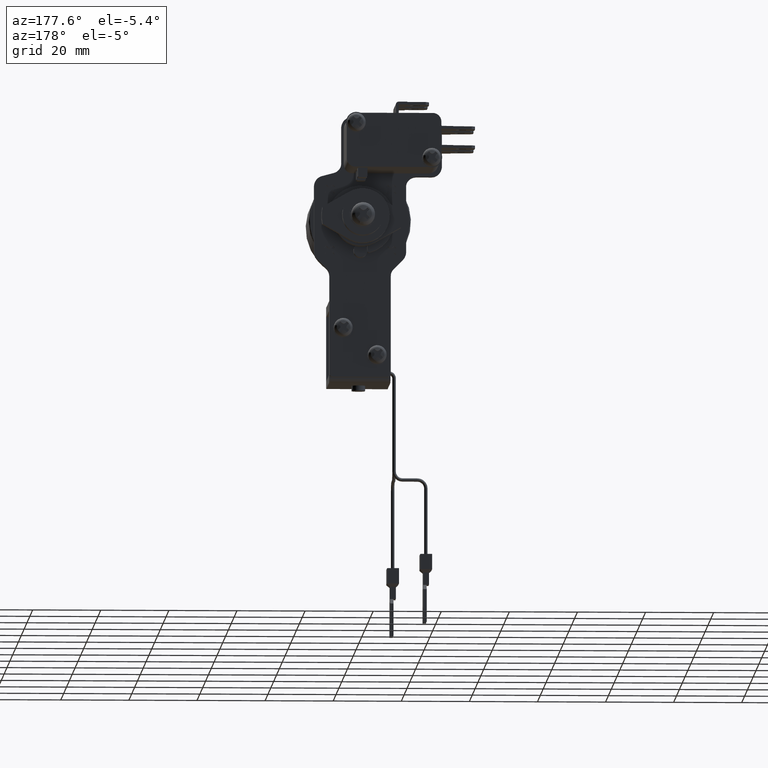
[diagram: clean part render]
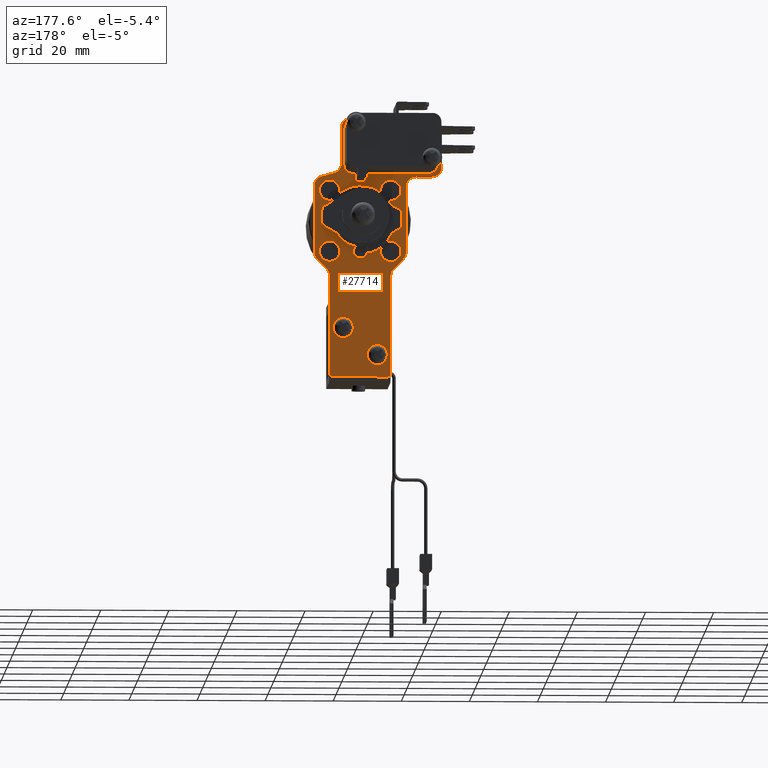
[diagram: same view with one face highlighted and labeled with its STEP entity id]
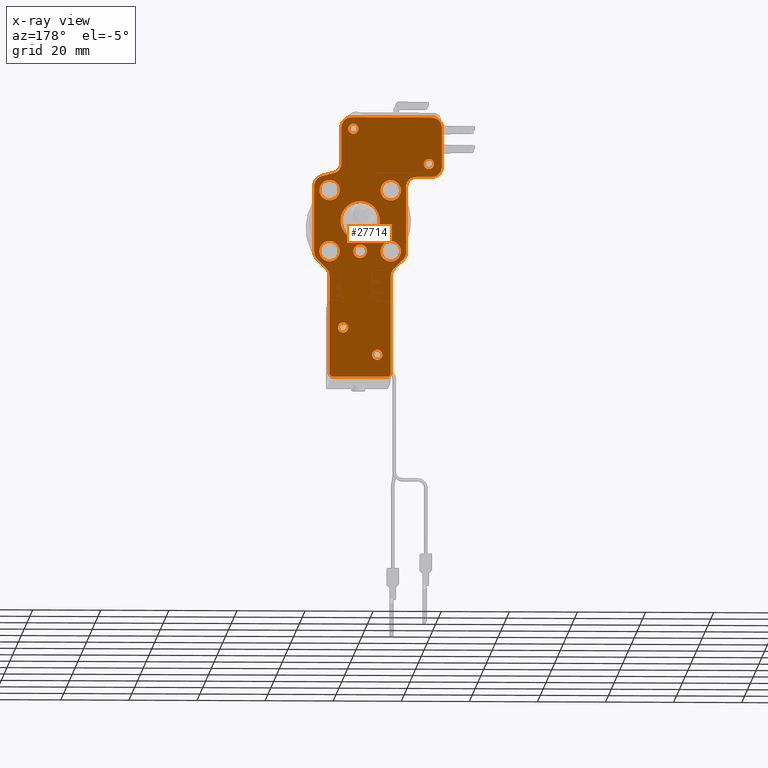
[diagram: x-ray of the same camera — body ghosted, the highlighted face saturated]
A machine part, auxiliary view. The second image highlights one B-rep face of the part: STEP entity #27714.
The next image is the same camera in x-ray: the body ghosted, the highlighted face saturated — about 0% of this face is hidden behind the body in this view.
In plain terms, the highlighted face is a freeform B-spline surface patch.
Its self-contained STEP definition (entity closure, byte-faithful):
#24863=CARTESIAN_POINT('',(29.0,-1.999923846119883,-8.982546928040161));
#24864=VERTEX_POINT('',#24863);
#24870=CARTESIAN_POINT('',(29.0,0.0,-10.999999999999940));
#24871=VERTEX_POINT('',#24870);
#24872=CARTESIAN_POINT('',(29.0,-1.999923846119883,-8.982546928040161));
#24873=CARTESIAN_POINT('',(28.999999999999996,-1.999999999999945,-8.991273297395450));
#24874=CARTESIAN_POINT('',(29.0,-1.999999999999945,-9.0));
#24875=CARTESIAN_POINT('',(29.0,-1.999999999999945,-10.999999999999943));
#24876=CARTESIAN_POINT('',(29.0,0.0,-10.999999999999940));
#24884=(BOUNDED_CURVE()B_SPLINE_CURVE(2,(#24872,#24873,#24874,#24875,#24876),.UNSPECIFIED.,.F.,.U.)B_SPLINE_CURVE_WITH_KNOTS((3,2,3),(0.248460105495365,0.250000000000000,0.500000000000000),.UNSPECIFIED.)CURVE()GEOMETRIC_REPRESENTATION_ITEM()RATIONAL_B_SPLINE_CURVE((0.996414027707793,0.998195901367617,1.0,0.707106781186548,1.0))REPRESENTATION_ITEM(''));
#24885=EDGE_CURVE('',#24864,#24871,#24884,.T.);
#24887=CARTESIAN_POINT('',(29.0,1.984532427645714,-9.248256004202085));
#24888=VERTEX_POINT('',#24887);
#24889=CARTESIAN_POINT('',(29.0,0.0,-10.999999999999940));
#24890=CARTESIAN_POINT('',(28.999999999999993,1.765397200224316,-10.999999999999943));
#24891=CARTESIAN_POINT('',(29.0,1.984532427645715,-9.248256004202085));
#24899=(BOUNDED_CURVE()B_SPLINE_CURVE(2,(#24889,#24890,#24891),.UNSPECIFIED.,.F.,.U.)B_SPLINE_CURVE_WITH_KNOTS((3,3),(0.500000000000000,0.728526071022086),.UNSPECIFIED.)CURVE()GEOMETRIC_REPRESENTATION_ITEM()RATIONAL_B_SPLINE_CURVE((1.0,0.732265053902198,0.954005430260721))REPRESENTATION_ITEM(''));
#24900=EDGE_CURVE('',#24871,#24888,#24899,.T.);
#24950=CARTESIAN_POINT('',(29.0,0.0,-7.000000000000055));
#24951=VERTEX_POINT('',#24950);
#24952=CARTESIAN_POINT('',(28.999999999999996,1.984532427645714,-9.248256004202085));
#24953=CARTESIAN_POINT('',(29.0,1.999999999999945,-9.124609855109915));
#24954=CARTESIAN_POINT('',(29.0,1.999999999999945,-9.0));
#24955=CARTESIAN_POINT('',(29.0,1.999999999999945,-7.000000000000055));
#24956=CARTESIAN_POINT('',(29.0,0.0,-7.000000000000055));
#24964=(BOUNDED_CURVE()B_SPLINE_CURVE(2,(#24952,#24953,#24954,#24955,#24956),.UNSPECIFIED.,.F.,.U.)B_SPLINE_CURVE_WITH_KNOTS((3,2,3),(0.728526071022087,0.750000000000000,1.0),.UNSPECIFIED.)CURVE()GEOMETRIC_REPRESENTATION_ITEM()RATIONAL_B_SPLINE_CURVE((0.954005430260723,0.974841727284350,1.0,0.707106781186548,1.0))REPRESENTATION_ITEM(''));
#24965=EDGE_CURVE('',#24888,#24951,#24964,.T.);
#24967=CARTESIAN_POINT('',(29.0,0.0,-7.000000000000055));
#24968=CARTESIAN_POINT('',(28.999999999999996,-1.982622419280312,-7.000000000000053));
#24969=CARTESIAN_POINT('',(29.000000000000004,-1.999923846119883,-8.982546928040161));
#24977=(BOUNDED_CURVE()B_SPLINE_CURVE(2,(#24967,#24968,#24969),.UNSPECIFIED.,.F.,.U.)B_SPLINE_CURVE_WITH_KNOTS((3,3),(0.0,0.248460105495365),.UNSPECIFIED.)CURVE()GEOMETRIC_REPRESENTATION_ITEM()RATIONAL_B_SPLINE_CURVE((1.0,0.708910879818930,0.996414027707793))REPRESENTATION_ITEM(''));
#24978=EDGE_CURVE('',#24951,#24864,#24977,.T.);
#25015=CARTESIAN_POINT('',(29.0,4.999999999999770,-38.0));
#25016=VERTEX_POINT('',#25015);
#25017=CARTESIAN_POINT('',(29.0,3.504623999442665,-39.382311355867117));
#25018=VERTEX_POINT('',#25017);
#25019=CARTESIAN_POINT('',(29.0,4.999999999999770,-38.0));
#25020=CARTESIAN_POINT('',(29.000000000000007,3.613414263519043,-38.000000000000007));
#25021=CARTESIAN_POINT('',(29.000000000000004,3.504623999442665,-39.382311355867124));
#25029=(BOUNDED_CURVE()B_SPLINE_CURVE(2,(#25019,#25020,#25021),.UNSPECIFIED.,.F.,.U.)B_SPLINE_CURVE_WITH_KNOTS((3,3),(0.0,0.236331300508706),.UNSPECIFIED.)CURVE()GEOMETRIC_REPRESENTATION_ITEM()RATIONAL_B_SPLINE_CURVE((1.0,0.723120658750543,0.969723355912909))REPRESENTATION_ITEM(''));
#25030=EDGE_CURVE('',#25016,#25018,#25029,.T.);
#25071=CARTESIAN_POINT('',(29.0,6.495376000556876,-39.617688644132883));
#25072=VERTEX_POINT('',#25071);
#25078=CARTESIAN_POINT('',(29.0,6.495376000556876,-39.617688644132876));
#25079=CARTESIAN_POINT('',(29.0,6.499999999999770,-39.558935161055118));
#25080=CARTESIAN_POINT('',(29.0,6.499999999999770,-39.500000000000000));
#25081=CARTESIAN_POINT('',(29.0,6.499999999999771,-38.0));
#25082=CARTESIAN_POINT('',(29.0,4.999999999999770,-38.0));
#25090=(BOUNDED_CURVE()B_SPLINE_CURVE(2,(#25078,#25079,#25080,#25081,#25082),.UNSPECIFIED.,.F.,.U.)B_SPLINE_CURVE_WITH_KNOTS((3,2,3),(0.736331300508706,0.750000000000000,1.0),.UNSPECIFIED.)CURVE()GEOMETRIC_REPRESENTATION_ITEM()RATIONAL_B_SPLINE_CURVE((0.969723355912910,0.983986122436004,1.0,0.707106781186548,1.0))REPRESENTATION_ITEM(''));
#25091=EDGE_CURVE('',#25072,#25016,#25090,.T.);
#25114=CARTESIAN_POINT('',(29.0,4.999999999999770,-41.0));
#25115=VERTEX_POINT('',#25114);
#25116=CARTESIAN_POINT('',(29.000000000000004,3.504623999442665,-39.382311355867124));
#25117=CARTESIAN_POINT('',(28.999999999999996,3.499999999999770,-39.441064838944882));
#25118=CARTESIAN_POINT('',(29.0,3.499999999999770,-39.500000000000000));
#25119=CARTESIAN_POINT('',(29.0,3.499999999999770,-41.0));
#25120=CARTESIAN_POINT('',(29.0,4.999999999999770,-41.0));
#25128=(BOUNDED_CURVE()B_SPLINE_CURVE(2,(#25116,#25117,#25118,#25119,#25120),.UNSPECIFIED.,.F.,.U.)B_SPLINE_CURVE_WITH_KNOTS((3,2,3),(0.236331300508706,0.250000000000000,0.500000000000000),.UNSPECIFIED.)CURVE()GEOMETRIC_REPRESENTATION_ITEM()RATIONAL_B_SPLINE_CURVE((0.969723355912909,0.983986122436004,1.0,0.707106781186548,1.0))REPRESENTATION_ITEM(''));
#25129=EDGE_CURVE('',#25018,#25115,#25128,.T.);
#25131=CARTESIAN_POINT('',(29.0,4.999999999999770,-41.0));
#25132=CARTESIAN_POINT('',(29.000000000000004,6.386585736480493,-40.999999999999993));
#25133=CARTESIAN_POINT('',(28.999999999999996,6.495376000556876,-39.617688644132876));
#25141=(BOUNDED_CURVE()B_SPLINE_CURVE(2,(#25131,#25132,#25133),.UNSPECIFIED.,.F.,.U.)B_SPLINE_CURVE_WITH_KNOTS((3,3),(0.500000000000000,0.736331300508705),.UNSPECIFIED.)CURVE()GEOMETRIC_REPRESENTATION_ITEM()RATIONAL_B_SPLINE_CURVE((1.0,0.723120658750544,0.969723355912908))REPRESENTATION_ITEM(''));
#25142=EDGE_CURVE('',#25115,#25072,#25141,.T.);
#25197=CARTESIAN_POINT('',(29.0,-5.0,-30.0));
#25198=VERTEX_POINT('',#25197);
#25199=CARTESIAN_POINT('',(29.0,-6.495376000557107,-31.382311355867120));
#25200=VERTEX_POINT('',#25199);
#25201=CARTESIAN_POINT('',(29.0,-5.0,-30.0));
#25202=CARTESIAN_POINT('',(29.000000000000007,-6.386585736480729,-30.0));
#25203=CARTESIAN_POINT('',(29.000000000000004,-6.495376000557107,-31.382311355867127));
#25211=(BOUNDED_CURVE()B_SPLINE_CURVE(2,(#25201,#25202,#25203),.UNSPECIFIED.,.F.,.U.)B_SPLINE_CURVE_WITH_KNOTS((3,3),(0.0,0.236331300508706),.UNSPECIFIED.)CURVE()GEOMETRIC_REPRESENTATION_ITEM()RATIONAL_B_SPLINE_CURVE((1.0,0.723120658750543,0.969723355912909))REPRESENTATION_ITEM(''));
#25212=EDGE_CURVE('',#25198,#25200,#25211,.T.);
#25253=CARTESIAN_POINT('',(29.0,-3.504623999442894,-31.617688644132880));
#25254=VERTEX_POINT('',#25253);
#25260=CARTESIAN_POINT('',(29.000000000000004,-3.504623999442894,-31.617688644132876));
#25261=CARTESIAN_POINT('',(29.0,-3.500000000000000,-31.558935161055118));
#25262=CARTESIAN_POINT('',(29.0,-3.500000000000000,-31.500000000000000));
#25263=CARTESIAN_POINT('',(29.0,-3.499999999999999,-30.000000000000004));
#25264=CARTESIAN_POINT('',(29.0,-5.0,-30.0));
#25272=(BOUNDED_CURVE()B_SPLINE_CURVE(2,(#25260,#25261,#25262,#25263,#25264),.UNSPECIFIED.,.F.,.U.)B_SPLINE_CURVE_WITH_KNOTS((3,2,3),(0.736331300508706,0.750000000000000,1.0),.UNSPECIFIED.)CURVE()GEOMETRIC_REPRESENTATION_ITEM()RATIONAL_B_SPLINE_CURVE((0.969723355912909,0.983986122436004,1.0,0.707106781186548,1.0))REPRESENTATION_ITEM(''));
#25273=EDGE_CURVE('',#25254,#25198,#25272,.T.);
#25296=CARTESIAN_POINT('',(29.0,-5.0,-33.0));
#25297=VERTEX_POINT('',#25296);
#25298=CARTESIAN_POINT('',(29.000000000000004,-6.495376000557107,-31.382311355867127));
#25299=CARTESIAN_POINT('',(28.999999999999996,-6.500000000000002,-31.441064838944875));
#25300=CARTESIAN_POINT('',(29.0,-6.500000000000001,-31.500000000000000));
#25301=CARTESIAN_POINT('',(29.0,-6.500000000000003,-33.0));
#25302=CARTESIAN_POINT('',(29.0,-5.0,-33.0));
#25310=(BOUNDED_CURVE()B_SPLINE_CURVE(2,(#25298,#25299,#25300,#25301,#25302),.UNSPECIFIED.,.F.,.U.)B_SPLINE_CURVE_WITH_KNOTS((3,2,3),(0.236331300508706,0.250000000000000,0.500000000000000),.UNSPECIFIED.)CURVE()GEOMETRIC_REPRESENTATION_ITEM()RATIONAL_B_SPLINE_CURVE((0.969723355912909,0.983986122436004,1.0,0.707106781186548,1.0))REPRESENTATION_ITEM(''));
#25311=EDGE_CURVE('',#25200,#25297,#25310,.T.);
#25313=CARTESIAN_POINT('',(29.0,-5.0,-33.0));
#25314=CARTESIAN_POINT('',(29.000000000000004,-3.613414263519278,-33.0));
#25315=CARTESIAN_POINT('',(28.999999999999996,-3.504623999442894,-31.617688644132880));
#25323=(BOUNDED_CURVE()B_SPLINE_CURVE(2,(#25313,#25314,#25315),.UNSPECIFIED.,.F.,.U.)B_SPLINE_CURVE_WITH_KNOTS((3,3),(0.500000000000000,0.736331300508705),.UNSPECIFIED.)CURVE()GEOMETRIC_REPRESENTATION_ITEM()RATIONAL_B_SPLINE_CURVE((1.0,0.723120658750544,0.969723355912908))REPRESENTATION_ITEM(''));
#25324=EDGE_CURVE('',#25297,#25254,#25323,.T.);
#25379=CARTESIAN_POINT('',(29.0,-2.0,28.600000000000001));
#25380=VERTEX_POINT('',#25379);
#25381=CARTESIAN_POINT('',(29.0,-3.495376000557106,27.217688644132870));
#25382=VERTEX_POINT('',#25381);
#25383=CARTESIAN_POINT('',(29.0,-2.0,28.600000000000001));
#25384=CARTESIAN_POINT('',(29.000000000000004,-3.386585736480730,28.600000000000001));
#25385=CARTESIAN_POINT('',(29.0,-3.495376000557106,27.217688644132874));
#25393=(BOUNDED_CURVE()B_SPLINE_CURVE(2,(#25383,#25384,#25385),.UNSPECIFIED.,.F.,.U.)B_SPLINE_CURVE_WITH_KNOTS((3,3),(0.0,0.236331300508706),.UNSPECIFIED.)CURVE()GEOMETRIC_REPRESENTATION_ITEM()RATIONAL_B_SPLINE_CURVE((1.0,0.723120658750543,0.969723355912911))REPRESENTATION_ITEM(''));
#25394=EDGE_CURVE('',#25380,#25382,#25393,.T.);
#25435=CARTESIAN_POINT('',(29.000000000000011,-0.504623999442894,26.982311355867129));
#25436=VERTEX_POINT('',#25435);
#25442=CARTESIAN_POINT('',(29.000000000000004,-0.504623999442894,26.982311355867129));
#25443=CARTESIAN_POINT('',(29.0,-0.500000000000000,27.041064838944877));
#25444=CARTESIAN_POINT('',(29.0,-0.500000000000000,27.100000000000001));
#25445=CARTESIAN_POINT('',(29.0,-0.500000000000000,28.600000000000012));
#25446=CARTESIAN_POINT('',(29.0,-2.0,28.600000000000001));
#25454=(BOUNDED_CURVE()B_SPLINE_CURVE(2,(#25442,#25443,#25444,#25445,#25446),.UNSPECIFIED.,.F.,.U.)B_SPLINE_CURVE_WITH_KNOTS((3,2,3),(0.736331300508706,0.750000000000000,1.0),.UNSPECIFIED.)CURVE()GEOMETRIC_REPRESENTATION_ITEM()RATIONAL_B_SPLINE_CURVE((0.969723355912911,0.983986122436005,1.0,0.707106781186548,1.0))REPRESENTATION_ITEM(''));
#25455=EDGE_CURVE('',#25436,#25380,#25454,.T.);
#25478=CARTESIAN_POINT('',(29.0,-2.0,25.600000000000001));
#25479=VERTEX_POINT('',#25478);
#25480=CARTESIAN_POINT('',(29.000000000000004,-3.495376000557105,27.217688644132867));
#25481=CARTESIAN_POINT('',(29.0,-3.500000000000000,27.158935161055119));
#25482=CARTESIAN_POINT('',(29.0,-3.500000000000000,27.100000000000001));
#25483=CARTESIAN_POINT('',(29.0,-3.499999999999999,25.600000000000001));
#25484=CARTESIAN_POINT('',(29.0,-2.0,25.600000000000001));
#25492=(BOUNDED_CURVE()B_SPLINE_CURVE(2,(#25480,#25481,#25482,#25483,#25484),.UNSPECIFIED.,.F.,.U.)B_SPLINE_CURVE_WITH_KNOTS((3,2,3),(0.236331300508706,0.250000000000000,0.500000000000000),.UNSPECIFIED.)CURVE()GEOMETRIC_REPRESENTATION_ITEM()RATIONAL_B_SPLINE_CURVE((0.969723355912911,0.983986122436005,1.0,0.707106781186548,1.0))REPRESENTATION_ITEM(''));
#25493=EDGE_CURVE('',#25382,#25479,#25492,.T.);
#25495=CARTESIAN_POINT('',(29.0,-2.0,25.600000000000001));
#25496=CARTESIAN_POINT('',(29.000000000000004,-0.613414263519278,25.600000000000005));
#25497=CARTESIAN_POINT('',(29.000000000000007,-0.504623999442894,26.982311355867129));
#25505=(BOUNDED_CURVE()B_SPLINE_CURVE(2,(#25495,#25496,#25497),.UNSPECIFIED.,.F.,.U.)B_SPLINE_CURVE_WITH_KNOTS((3,3),(0.500000000000000,0.736331300508705),.UNSPECIFIED.)CURVE()GEOMETRIC_REPRESENTATION_ITEM()RATIONAL_B_SPLINE_CURVE((1.0,0.723120658750544,0.969723355912908))REPRESENTATION_ITEM(''));
#25506=EDGE_CURVE('',#25479,#25436,#25505,.T.);
#25561=CARTESIAN_POINT('',(29.0,20.199999999999999,18.300000000000001));
#25562=VERTEX_POINT('',#25561);
#25563=CARTESIAN_POINT('',(29.0,18.704623999442891,16.917688644132870));
#25564=VERTEX_POINT('',#25563);
#25565=CARTESIAN_POINT('',(29.0,20.199999999999999,18.300000000000001));
#25566=CARTESIAN_POINT('',(28.999999999999993,18.813414263519267,18.299999999999997));
#25567=CARTESIAN_POINT('',(29.0,18.704623999442894,16.917688644132870));
#25575=(BOUNDED_CURVE()B_SPLINE_CURVE(2,(#25565,#25566,#25567),.UNSPECIFIED.,.F.,.U.)B_SPLINE_CURVE_WITH_KNOTS((3,3),(0.0,0.236331300508706),.UNSPECIFIED.)CURVE()GEOMETRIC_REPRESENTATION_ITEM()RATIONAL_B_SPLINE_CURVE((1.0,0.723120658750543,0.969723355912910))REPRESENTATION_ITEM(''));
#25576=EDGE_CURVE('',#25562,#25564,#25575,.T.);
#25617=CARTESIAN_POINT('',(29.0,21.695376000557101,16.682311355867132));
#25618=VERTEX_POINT('',#25617);
#25624=CARTESIAN_POINT('',(29.000000000000004,21.695376000557104,16.682311355867128));
#25625=CARTESIAN_POINT('',(29.000000000000004,21.699999999999999,16.741064838944883));
#25626=CARTESIAN_POINT('',(29.0,21.699999999999999,16.800000000000001));
#25627=CARTESIAN_POINT('',(29.0,21.699999999999996,18.300000000000001));
#25628=CARTESIAN_POINT('',(29.0,20.199999999999999,18.300000000000001));
#25636=(BOUNDED_CURVE()B_SPLINE_CURVE(2,(#25624,#25625,#25626,#25627,#25628),.UNSPECIFIED.,.F.,.U.)B_SPLINE_CURVE_WITH_KNOTS((3,2,3),(0.736331300508707,0.750000000000000,1.0),.UNSPECIFIED.)CURVE()GEOMETRIC_REPRESENTATION_ITEM()RATIONAL_B_SPLINE_CURVE((0.969723355912911,0.983986122436005,1.0,0.707106781186548,1.0))REPRESENTATION_ITEM(''));
#25637=EDGE_CURVE('',#25618,#25562,#25636,.T.);
#25660=CARTESIAN_POINT('',(29.0,20.199999999999999,15.300000000000001));
#25661=VERTEX_POINT('',#25660);
#25662=CARTESIAN_POINT('',(29.0,18.704623999442894,16.917688644132870));
#25663=CARTESIAN_POINT('',(29.000000000000007,18.699999999999999,16.858935161055118));
#25664=CARTESIAN_POINT('',(29.0,18.699999999999999,16.800000000000001));
#25665=CARTESIAN_POINT('',(29.0,18.699999999999999,15.300000000000004));
#25666=CARTESIAN_POINT('',(29.0,20.199999999999999,15.300000000000001));
#25674=(BOUNDED_CURVE()B_SPLINE_CURVE(2,(#25662,#25663,#25664,#25665,#25666),.UNSPECIFIED.,.F.,.U.)B_SPLINE_CURVE_WITH_KNOTS((3,2,3),(0.236331300508706,0.250000000000000,0.500000000000000),.UNSPECIFIED.)CURVE()GEOMETRIC_REPRESENTATION_ITEM()RATIONAL_B_SPLINE_CURVE((0.969723355912910,0.983986122436004,1.0,0.707106781186548,1.0))REPRESENTATION_ITEM(''));
#25675=EDGE_CURVE('',#25564,#25661,#25674,.T.);
#25677=CARTESIAN_POINT('',(29.0,20.199999999999999,15.300000000000001));
#25678=CARTESIAN_POINT('',(29.000000000000004,21.586585736480735,15.299999999999997));
#25679=CARTESIAN_POINT('',(28.999999999999996,21.695376000557104,16.682311355867128));
#25687=(BOUNDED_CURVE()B_SPLINE_CURVE(2,(#25677,#25678,#25679),.UNSPECIFIED.,.F.,.U.)B_SPLINE_CURVE_WITH_KNOTS((3,3),(0.500000000000000,0.736331300508708),.UNSPECIFIED.)CURVE()GEOMETRIC_REPRESENTATION_ITEM()RATIONAL_B_SPLINE_CURVE((1.0,0.723120658750541,0.969723355912913))REPRESENTATION_ITEM(''));
#25688=EDGE_CURVE('',#25661,#25618,#25687,.T.);
#25743=CARTESIAN_POINT('',(29.0,-9.0,-5.999999999999999));
#25744=VERTEX_POINT('',#25743);
#25745=CARTESIAN_POINT('',(29.000000000025469,-6.009247998790690,-8.764622712617925));
#25746=VERTEX_POINT('',#25745);
#25747=CARTESIAN_POINT('',(29.0,-9.0,-5.999999999999999));
#25748=CARTESIAN_POINT('',(29.0,-6.226828525390990,-5.999999999999999));
#25749=CARTESIAN_POINT('',(29.000000000025477,-6.009247998790690,-8.764622712617927));
#25757=(BOUNDED_CURVE()B_SPLINE_CURVE(2,(#25747,#25748,#25749),.UNSPECIFIED.,.F.,.U.)B_SPLINE_CURVE_WITH_KNOTS((3,3),(0.0,0.236331300610236),.UNSPECIFIED.)CURVE()GEOMETRIC_REPRESENTATION_ITEM()RATIONAL_B_SPLINE_CURVE((1.0,0.723120658631593,0.969723356124796))REPRESENTATION_ITEM(''));
#25758=EDGE_CURVE('',#25744,#25746,#25757,.T.);
#25760=CARTESIAN_POINT('',(29.000000000025469,-11.990752001209311,-9.235377287382075));
#25761=VERTEX_POINT('',#25760);
#25762=CARTESIAN_POINT('',(29.000000000025469,-11.990752001209311,-9.235377287382075));
#25763=CARTESIAN_POINT('',(29.000000000000004,-11.999999999999998,-9.117870321220462));
#25764=CARTESIAN_POINT('',(29.0,-12.0,-9.0));
#25765=CARTESIAN_POINT('',(29.0,-12.0,-5.999999999999999));
#25766=CARTESIAN_POINT('',(29.0,-9.0,-5.999999999999999));
#25774=(BOUNDED_CURVE()B_SPLINE_CURVE(2,(#25762,#25763,#25764,#25765,#25766),.UNSPECIFIED.,.F.,.U.)B_SPLINE_CURVE_WITH_KNOTS((3,2,3),(0.736331300610236,0.750000000000000,1.0),.UNSPECIFIED.)CURVE()GEOMETRIC_REPRESENTATION_ITEM()RATIONAL_B_SPLINE_CURVE((0.969723356124796,0.983986122554954,1.0,0.707106781186548,1.0))REPRESENTATION_ITEM(''));
#25775=EDGE_CURVE('',#25761,#25744,#25774,.T.);
#25842=CARTESIAN_POINT('',(29.0,-9.0,-12.0));
#25843=VERTEX_POINT('',#25842);
#25844=CARTESIAN_POINT('',(29.000000000025469,-6.009247998790690,-8.764622712617925));
#25845=CARTESIAN_POINT('',(29.000000000000004,-5.999999999999999,-8.882129678779537));
#25846=CARTESIAN_POINT('',(29.0,-5.999999999999999,-9.0));
#25847=CARTESIAN_POINT('',(29.0,-5.999999999999999,-12.0));
#25848=CARTESIAN_POINT('',(29.0,-9.0,-12.0));
#25856=(BOUNDED_CURVE()B_SPLINE_CURVE(2,(#25844,#25845,#25846,#25847,#25848),.UNSPECIFIED.,.F.,.U.)B_SPLINE_CURVE_WITH_KNOTS((3,2,3),(0.236331300610236,0.250000000000000,0.500000000000000),.UNSPECIFIED.)CURVE()GEOMETRIC_REPRESENTATION_ITEM()RATIONAL_B_SPLINE_CURVE((0.969723356124796,0.983986122554954,1.0,0.707106781186548,1.0))REPRESENTATION_ITEM(''));
#25857=EDGE_CURVE('',#25746,#25843,#25856,.T.);
#25891=CARTESIAN_POINT('',(29.0,-9.0,-12.0));
#25892=CARTESIAN_POINT('',(29.000000000000007,-11.773171474608995,-12.000000000000002));
#25893=CARTESIAN_POINT('',(29.000000000025477,-11.990752001209312,-9.235377287382075));
#25901=(BOUNDED_CURVE()B_SPLINE_CURVE(2,(#25891,#25892,#25893),.UNSPECIFIED.,.F.,.U.)B_SPLINE_CURVE_WITH_KNOTS((3,3),(0.500000000000000,0.736331300610235),.UNSPECIFIED.)CURVE()GEOMETRIC_REPRESENTATION_ITEM()RATIONAL_B_SPLINE_CURVE((1.0,0.723120658631594,0.969723356124794))REPRESENTATION_ITEM(''));
#25902=EDGE_CURVE('',#25843,#25761,#25901,.T.);
#25925=CARTESIAN_POINT('',(29.0,9.0,-5.999999999999999));
#25926=VERTEX_POINT('',#25925);
#25927=CARTESIAN_POINT('',(29.000000000025469,11.990752001209311,-8.764622712617925));
#25928=VERTEX_POINT('',#25927);
#25929=CARTESIAN_POINT('',(29.0,9.0,-5.999999999999999));
#25930=CARTESIAN_POINT('',(29.0,11.773171474609006,-5.999999999999999));
#25931=CARTESIAN_POINT('',(29.000000000025473,11.990752001209316,-8.764622712617925));
#25939=(BOUNDED_CURVE()B_SPLINE_CURVE(2,(#25929,#25930,#25931),.UNSPECIFIED.,.F.,.U.)B_SPLINE_CURVE_WITH_KNOTS((3,3),(0.0,0.236331300610236),.UNSPECIFIED.)CURVE()GEOMETRIC_REPRESENTATION_ITEM()RATIONAL_B_SPLINE_CURVE((1.0,0.723120658631593,0.969723356124795))REPRESENTATION_ITEM(''));
#25940=EDGE_CURVE('',#25926,#25928,#25939,.T.);
#25942=CARTESIAN_POINT('',(29.000000000025469,6.009247998790690,-9.235377287382077));
#25943=VERTEX_POINT('',#25942);
#25944=CARTESIAN_POINT('',(29.000000000025477,6.009247998790690,-9.235377287382077));
#25945=CARTESIAN_POINT('',(28.999999999999996,5.999999999999998,-9.117870321220464));
#25946=CARTESIAN_POINT('',(29.0,5.999999999999999,-9.0));
#25947=CARTESIAN_POINT('',(29.0,5.999999999999999,-5.999999999999999));
#25948=CARTESIAN_POINT('',(29.0,9.0,-5.999999999999999));
#25956=(BOUNDED_CURVE()B_SPLINE_CURVE(2,(#25944,#25945,#25946,#25947,#25948),.UNSPECIFIED.,.F.,.U.)B_SPLINE_CURVE_WITH_KNOTS((3,2,3),(0.736331300610236,0.750000000000000,1.0),.UNSPECIFIED.)CURVE()GEOMETRIC_REPRESENTATION_ITEM()RATIONAL_B_SPLINE_CURVE((0.969723356124795,0.983986122554954,1.0,0.707106781186548,1.0))REPRESENTATION_ITEM(''));
#25957=EDGE_CURVE('',#25943,#25926,#25956,.T.);
#26024=CARTESIAN_POINT('',(29.0,9.0,-12.0));
#26025=VERTEX_POINT('',#26024);
#26026=CARTESIAN_POINT('',(29.000000000025469,11.990752001209314,-8.764622712617925));
#26027=CARTESIAN_POINT('',(28.999999999999996,11.999999999999998,-8.882129678779537));
#26028=CARTESIAN_POINT('',(29.0,12.0,-9.0));
#26029=CARTESIAN_POINT('',(29.0,12.0,-12.0));
#26030=CARTESIAN_POINT('',(29.0,9.0,-12.0));
#26038=(BOUNDED_CURVE()B_SPLINE_CURVE(2,(#26026,#26027,#26028,#26029,#26030),.UNSPECIFIED.,.F.,.U.)B_SPLINE_CURVE_WITH_KNOTS((3,2,3),(0.236331300610236,0.250000000000000,0.500000000000000),.UNSPECIFIED.)CURVE()GEOMETRIC_REPRESENTATION_ITEM()RATIONAL_B_SPLINE_CURVE((0.969723356124795,0.983986122554954,1.0,0.707106781186548,1.0))REPRESENTATION_ITEM(''));
#26039=EDGE_CURVE('',#25928,#26025,#26038,.T.);
#26073=CARTESIAN_POINT('',(29.0,9.0,-12.0));
#26074=CARTESIAN_POINT('',(29.000000000000007,6.226828525391006,-12.000000000000002));
#26075=CARTESIAN_POINT('',(29.000000000025477,6.009247998790690,-9.235377287382077));
#26083=(BOUNDED_CURVE()B_SPLINE_CURVE(2,(#26073,#26074,#26075),.UNSPECIFIED.,.F.,.U.)B_SPLINE_CURVE_WITH_KNOTS((3,3),(0.500000000000000,0.736331300610235),.UNSPECIFIED.)CURVE()GEOMETRIC_REPRESENTATION_ITEM()RATIONAL_B_SPLINE_CURVE((1.0,0.723120658631594,0.969723356124794))REPRESENTATION_ITEM(''));
#26084=EDGE_CURVE('',#26025,#25943,#26083,.T.);
#26107=CARTESIAN_POINT('',(29.0,-9.0,12.0));
#26108=VERTEX_POINT('',#26107);
#26109=CARTESIAN_POINT('',(29.000000000025469,-6.009247998790690,9.235377287382075));
#26110=VERTEX_POINT('',#26109);
#26111=CARTESIAN_POINT('',(29.0,-9.0,12.0));
#26112=CARTESIAN_POINT('',(29.0,-6.226828525390990,12.0));
#26113=CARTESIAN_POINT('',(29.000000000025469,-6.009247998790690,9.235377287382075));
#26121=(BOUNDED_CURVE()B_SPLINE_CURVE(2,(#26111,#26112,#26113),.UNSPECIFIED.,.F.,.U.)B_SPLINE_CURVE_WITH_KNOTS((3,3),(0.0,0.236331300610236),.UNSPECIFIED.)CURVE()GEOMETRIC_REPRESENTATION_ITEM()RATIONAL_B_SPLINE_CURVE((1.0,0.723120658631593,0.969723356124796))REPRESENTATION_ITEM(''));
#26122=EDGE_CURVE('',#26108,#26110,#26121,.T.);
#26124=CARTESIAN_POINT('',(29.000000000025469,-11.990752001209311,8.764622712617925));
#26125=VERTEX_POINT('',#26124);
#26126=CARTESIAN_POINT('',(29.000000000025469,-11.990752001209311,8.764622712617925));
#26127=CARTESIAN_POINT('',(29.000000000000004,-11.999999999999998,8.882129678779538));
#26128=CARTESIAN_POINT('',(29.0,-12.0,9.0));
#26129=CARTESIAN_POINT('',(29.0,-12.0,12.0));
#26130=CARTESIAN_POINT('',(29.0,-9.0,12.0));
#26138=(BOUNDED_CURVE()B_SPLINE_CURVE(2,(#26126,#26127,#26128,#26129,#26130),.UNSPECIFIED.,.F.,.U.)B_SPLINE_CURVE_WITH_KNOTS((3,2,3),(0.736331300610236,0.750000000000000,1.0),.UNSPECIFIED.)CURVE()GEOMETRIC_REPRESENTATION_ITEM()RATIONAL_B_SPLINE_CURVE((0.969723356124796,0.983986122554954,1.0,0.707106781186548,1.0))REPRESENTATION_ITEM(''));
#26139=EDGE_CURVE('',#26125,#26108,#26138,.T.);
#26206=CARTESIAN_POINT('',(29.0,-9.0,5.999999999999999));
#26207=VERTEX_POINT('',#26206);
#26208=CARTESIAN_POINT('',(29.000000000025473,-6.009247998790690,9.235377287382075));
#26209=CARTESIAN_POINT('',(28.999999999999993,-5.999999999999999,9.117870321220462));
#26210=CARTESIAN_POINT('',(29.0,-5.999999999999999,9.0));
#26211=CARTESIAN_POINT('',(29.0,-5.999999999999999,5.999999999999999));
#26212=CARTESIAN_POINT('',(29.0,-9.0,5.999999999999999));
#26220=(BOUNDED_CURVE()B_SPLINE_CURVE(2,(#26208,#26209,#26210,#26211,#26212),.UNSPECIFIED.,.F.,.U.)B_SPLINE_CURVE_WITH_KNOTS((3,2,3),(0.236331300610236,0.250000000000000,0.500000000000000),.UNSPECIFIED.)CURVE()GEOMETRIC_REPRESENTATION_ITEM()RATIONAL_B_SPLINE_CURVE((0.969723356124795,0.983986122554954,1.0,0.707106781186548,1.0))REPRESENTATION_ITEM(''));
#26221=EDGE_CURVE('',#26110,#26207,#26220,.T.);
#26255=CARTESIAN_POINT('',(29.0,-9.0,5.999999999999999));
#26256=CARTESIAN_POINT('',(29.000000000000007,-11.773171474608995,6.0));
#26257=CARTESIAN_POINT('',(29.000000000025477,-11.990752001209312,8.764622712617925));
#26265=(BOUNDED_CURVE()B_SPLINE_CURVE(2,(#26255,#26256,#26257),.UNSPECIFIED.,.F.,.U.)B_SPLINE_CURVE_WITH_KNOTS((3,3),(0.500000000000000,0.736331300610235),.UNSPECIFIED.)CURVE()GEOMETRIC_REPRESENTATION_ITEM()RATIONAL_B_SPLINE_CURVE((1.0,0.723120658631594,0.969723356124794))REPRESENTATION_ITEM(''));
#26266=EDGE_CURVE('',#26207,#26125,#26265,.T.);
#26289=CARTESIAN_POINT('',(29.0,9.0,12.0));
#26290=VERTEX_POINT('',#26289);
#26291=CARTESIAN_POINT('',(29.000000000025469,11.990752001209311,9.235377287382077));
#26292=VERTEX_POINT('',#26291);
#26293=CARTESIAN_POINT('',(29.0,9.0,12.0));
#26294=CARTESIAN_POINT('',(29.0,11.773171474609006,12.0));
#26295=CARTESIAN_POINT('',(29.000000000025473,11.990752001209316,9.235377287382077));
#26303=(BOUNDED_CURVE()B_SPLINE_CURVE(2,(#26293,#26294,#26295),.UNSPECIFIED.,.F.,.U.)B_SPLINE_CURVE_WITH_KNOTS((3,3),(0.0,0.236331300610236),.UNSPECIFIED.)CURVE()GEOMETRIC_REPRESENTATION_ITEM()RATIONAL_B_SPLINE_CURVE((1.0,0.723120658631593,0.969723356124795))REPRESENTATION_ITEM(''));
#26304=EDGE_CURVE('',#26290,#26292,#26303,.T.);
#26306=CARTESIAN_POINT('',(29.000000000025469,6.009247998790691,8.764622712617925));
#26307=VERTEX_POINT('',#26306);
#26308=CARTESIAN_POINT('',(29.000000000025466,6.009247998790691,8.764622712617925));
#26309=CARTESIAN_POINT('',(28.999999999999996,5.999999999999998,8.882129678779538));
#26310=CARTESIAN_POINT('',(29.0,5.999999999999999,9.0));
#26311=CARTESIAN_POINT('',(29.0,5.999999999999999,12.0));
#26312=CARTESIAN_POINT('',(29.0,9.0,12.0));
#26320=(BOUNDED_CURVE()B_SPLINE_CURVE(2,(#26308,#26309,#26310,#26311,#26312),.UNSPECIFIED.,.F.,.U.)B_SPLINE_CURVE_WITH_KNOTS((3,2,3),(0.736331300610236,0.750000000000000,1.0),.UNSPECIFIED.)CURVE()GEOMETRIC_REPRESENTATION_ITEM()RATIONAL_B_SPLINE_CURVE((0.969723356124795,0.983986122554954,1.0,0.707106781186548,1.0))REPRESENTATION_ITEM(''));
#26321=EDGE_CURVE('',#26307,#26290,#26320,.T.);
#26388=CARTESIAN_POINT('',(29.0,9.0,5.999999999999999));
#26389=VERTEX_POINT('',#26388);
#26390=CARTESIAN_POINT('',(29.000000000025469,11.990752001209314,9.235377287382077));
#26391=CARTESIAN_POINT('',(28.999999999999996,11.999999999999998,9.117870321220464));
#26392=CARTESIAN_POINT('',(29.0,12.0,9.0));
#26393=CARTESIAN_POINT('',(29.0,12.0,5.999999999999999));
#26394=CARTESIAN_POINT('',(29.0,9.0,5.999999999999999));
#26402=(BOUNDED_CURVE()B_SPLINE_CURVE(2,(#26390,#26391,#26392,#26393,#26394),.UNSPECIFIED.,.F.,.U.)B_SPLINE_CURVE_WITH_KNOTS((3,2,3),(0.236331300610236,0.250000000000000,0.500000000000000),.UNSPECIFIED.)CURVE()GEOMETRIC_REPRESENTATION_ITEM()RATIONAL_B_SPLINE_CURVE((0.969723356124795,0.983986122554954,1.0,0.707106781186548,1.0))REPRESENTATION_ITEM(''));
#26403=EDGE_CURVE('',#26292,#26389,#26402,.T.);
#26437=CARTESIAN_POINT('',(29.0,9.0,5.999999999999999));
#26438=CARTESIAN_POINT('',(29.000000000000007,6.226828525391006,6.0));
#26439=CARTESIAN_POINT('',(29.000000000025477,6.009247998790691,8.764622712617925));
#26447=(BOUNDED_CURVE()B_SPLINE_CURVE(2,(#26437,#26438,#26439),.UNSPECIFIED.,.F.,.U.)B_SPLINE_CURVE_WITH_KNOTS((3,3),(0.500000000000000,0.736331300610235),.UNSPECIFIED.)CURVE()GEOMETRIC_REPRESENTATION_ITEM()RATIONAL_B_SPLINE_CURVE((1.0,0.723120658631594,0.969723356124794))REPRESENTATION_ITEM(''));
#26448=EDGE_CURVE('',#26389,#26307,#26447,.T.);
#26475=CARTESIAN_POINT('',(29.0,-5.709804776554321,0.678696849585621));
#26476=VERTEX_POINT('',#26475);
#26477=CARTESIAN_POINT('',(29.0,0.0,-5.750000000000000));
#26478=VERTEX_POINT('',#26477);
#26479=CARTESIAN_POINT('',(29.0,-5.709804776554321,0.678696849585621));
#26480=CARTESIAN_POINT('',(29.0,-5.750000000000001,0.340538688311012));
#26481=CARTESIAN_POINT('',(29.0,-5.750000000000000,0.0));
#26482=CARTESIAN_POINT('',(29.0,-5.750000000000000,-5.750000000000000));
#26483=CARTESIAN_POINT('',(29.0,0.0,-5.750000000000000));
#26491=(BOUNDED_CURVE()B_SPLINE_CURVE(2,(#26479,#26480,#26481,#26482,#26483),.UNSPECIFIED.,.F.,.U.)B_SPLINE_CURVE_WITH_KNOTS((3,2,3),(0.229562473497337,0.250000000000000,0.500000000000000),.UNSPECIFIED.)CURVE()GEOMETRIC_REPRESENTATION_ITEM()RATIONAL_B_SPLINE_CURVE((0.956026754152002,0.976055948312199,1.0,0.707106781186548,1.0))REPRESENTATION_ITEM(''));
#26492=EDGE_CURVE('',#26476,#26478,#26491,.T.);
#26494=CARTESIAN_POINT('',(29.0,5.739275090905370,-0.351029102658390));
#26495=VERTEX_POINT('',#26494);
#26496=CARTESIAN_POINT('',(29.0,0.0,-5.750000000000000));
#26497=CARTESIAN_POINT('',(28.999999999999996,5.409059884078955,-5.750000000000000));
#26498=CARTESIAN_POINT('',(29.0,5.739275090905370,-0.351029102658390));
#26506=(BOUNDED_CURVE()B_SPLINE_CURVE(2,(#26496,#26497,#26498),.UNSPECIFIED.,.F.,.U.)B_SPLINE_CURVE_WITH_KNOTS((3,3),(0.500000000000000,0.739332962221948),.UNSPECIFIED.)CURVE()GEOMETRIC_REPRESENTATION_ITEM()RATIONAL_B_SPLINE_CURVE((1.0,0.719603993306622,0.976072041630293))REPRESENTATION_ITEM(''));
#26507=EDGE_CURVE('',#26478,#26495,#26506,.T.);
#26574=CARTESIAN_POINT('',(29.0,0.0,5.750000000000000));
#26575=VERTEX_POINT('',#26574);
#26576=CARTESIAN_POINT('',(29.0,0.0,5.750000000000000));
#26577=CARTESIAN_POINT('',(29.0,-5.107003523663247,5.750000000000000));
#26578=CARTESIAN_POINT('',(29.0,-5.709804776554321,0.678696849585621));
#26586=(BOUNDED_CURVE()B_SPLINE_CURVE(2,(#26576,#26577,#26578),.UNSPECIFIED.,.F.,.U.)B_SPLINE_CURVE_WITH_KNOTS((3,3),(0.0,0.229562473497337),.UNSPECIFIED.)CURVE()GEOMETRIC_REPRESENTATION_ITEM()RATIONAL_B_SPLINE_CURVE((1.0,0.731050832874349,0.956026754152002))REPRESENTATION_ITEM(''));
#26587=EDGE_CURVE('',#26575,#26476,#26586,.T.);
#26621=CARTESIAN_POINT('',(29.000000000000004,5.739275090905370,-0.351029102658390));
#26622=CARTESIAN_POINT('',(28.999999999999996,5.750000000000000,-0.175678389300782));
#26623=CARTESIAN_POINT('',(29.0,5.750000000000000,0.0));
#26624=CARTESIAN_POINT('',(29.0,5.750000000000000,5.750000000000000));
#26625=CARTESIAN_POINT('',(29.0,0.0,5.750000000000000));
#26633=(BOUNDED_CURVE()B_SPLINE_CURVE(2,(#26621,#26622,#26623,#26624,#26625),.UNSPECIFIED.,.F.,.U.)B_SPLINE_CURVE_WITH_KNOTS((3,2,3),(0.739332962221948,0.750000000000000,1.0),.UNSPECIFIED.)CURVE()GEOMETRIC_REPRESENTATION_ITEM()RATIONAL_B_SPLINE_CURVE((0.976072041630294,0.987502787879926,1.0,0.707106781186548,1.0))REPRESENTATION_ITEM(''));
#26634=EDGE_CURVE('',#26495,#26575,#26633,.T.);
#26665=CARTESIAN_POINT('',(29.0,24.0,27.500000000000000));
#26666=VERTEX_POINT('',#26665);
#26667=CARTESIAN_POINT('',(29.0,21.0,30.500000000000000));
#26668=VERTEX_POINT('',#26667);
#26669=CARTESIAN_POINT('',(29.0,24.0,27.500000000000000));
#26670=CARTESIAN_POINT('',(29.0,23.999999999999996,30.499999999999996));
#26671=CARTESIAN_POINT('',(29.0,21.0,30.500000000000000));
#26679=(BOUNDED_CURVE()B_SPLINE_CURVE(2,(#26669,#26670,#26671),.UNSPECIFIED.,.F.,.U.)CURVE()GEOMETRIC_REPRESENTATION_ITEM()QUASI_UNIFORM_CURVE()RATIONAL_B_SPLINE_CURVE((1.0,0.707106781186548,1.0))REPRESENTATION_ITEM(''));
#26680=EDGE_CURVE('',#26666,#26668,#26679,.T.);
#26717=CARTESIAN_POINT('',(29.0,24.0,16.0));
#26718=VERTEX_POINT('',#26717);
#26719=CARTESIAN_POINT('',(29.0,24.0,16.0));
#26720=CARTESIAN_POINT('',(29.0,24.0,27.500000000000000));
#26721=QUASI_UNIFORM_CURVE('',1,(#26719,#26720),.UNSPECIFIED.,.F.,.U.);
#26722=EDGE_CURVE('',#26718,#26666,#26721,.T.);
#26754=CARTESIAN_POINT('',(29.0,21.0,13.0));
#26755=VERTEX_POINT('',#26754);
#26756=CARTESIAN_POINT('',(29.0,21.0,13.0));
#26757=CARTESIAN_POINT('',(29.0,23.999999999999996,13.000000000000004));
#26758=CARTESIAN_POINT('',(29.0,24.0,16.0));
#26766=(BOUNDED_CURVE()B_SPLINE_CURVE(2,(#26756,#26757,#26758),.UNSPECIFIED.,.F.,.U.)CURVE()GEOMETRIC_REPRESENTATION_ITEM()QUASI_UNIFORM_CURVE()RATIONAL_B_SPLINE_CURVE((1.0,0.707106781186548,1.0))REPRESENTATION_ITEM(''));
#26767=EDGE_CURVE('',#26755,#26718,#26766,.T.);
#26798=CARTESIAN_POINT('',(29.0,16.500000000000000,13.0));
#26799=VERTEX_POINT('',#26798);
#26800=CARTESIAN_POINT('',(29.0,16.500000000000000,13.0));
#26801=CARTESIAN_POINT('',(29.0,21.0,13.0));
#26802=QUASI_UNIFORM_CURVE('',1,(#26800,#26801),.UNSPECIFIED.,.F.,.U.);
#26803=EDGE_CURVE('',#26799,#26755,#26802,.T.);
#26835=CARTESIAN_POINT('',(29.0,13.499999999999760,10.0));
#26836=VERTEX_POINT('',#26835);
#26837=CARTESIAN_POINT('',(29.0,16.500000000000000,13.0));
#26838=CARTESIAN_POINT('',(29.0,13.500000000000002,13.000000000000004));
#26839=CARTESIAN_POINT('',(29.0,13.499999999999760,10.0));
#26847=(BOUNDED_CURVE()B_SPLINE_CURVE(2,(#26837,#26838,#26839),.UNSPECIFIED.,.F.,.U.)CURVE()GEOMETRIC_REPRESENTATION_ITEM()QUASI_UNIFORM_CURVE()RATIONAL_B_SPLINE_CURVE((1.0,0.707106781186548,1.0))REPRESENTATION_ITEM(''));
#26848=EDGE_CURVE('',#26799,#26836,#26847,.T.);
#26879=CARTESIAN_POINT('',(29.0,13.499999999999760,-9.257359312880579));
#26880=VERTEX_POINT('',#26879);
#26881=CARTESIAN_POINT('',(29.0,13.499999999999760,-9.257359312880579));
#26882=CARTESIAN_POINT('',(29.0,13.499999999999760,10.0));
#26883=QUASI_UNIFORM_CURVE('',1,(#26881,#26882),.UNSPECIFIED.,.F.,.U.);
#26884=EDGE_CURVE('',#26880,#26836,#26883,.T.);
#26916=CARTESIAN_POINT('',(29.0,12.621320000000001,-11.378679999999999));
#26917=VERTEX_POINT('',#26916);
#26918=CARTESIAN_POINT('',(29.0,12.621320000000001,-11.378679999999999));
#26919=CARTESIAN_POINT('',(29.000000000000004,13.499999999999762,-10.500000284613957));
#26920=CARTESIAN_POINT('',(29.0,13.499999999999760,-9.257359312880579));
#26928=(BOUNDED_CURVE()B_SPLINE_CURVE(2,(#26918,#26919,#26920),.UNSPECIFIED.,.F.,.U.)CURVE()GEOMETRIC_REPRESENTATION_ITEM()QUASI_UNIFORM_CURVE()RATIONAL_B_SPLINE_CURVE((1.0,0.923879501522432,1.0))REPRESENTATION_ITEM(''));
#26929=EDGE_CURVE('',#26917,#26880,#26928,.T.);
#26960=CARTESIAN_POINT('',(29.0,9.878679269710810,-14.121321730289340));
#26961=VERTEX_POINT('',#26960);
#26962=CARTESIAN_POINT('',(29.0,9.878679269710810,-14.121321730289340));
#26963=CARTESIAN_POINT('',(29.0,12.621320000000001,-11.378679999999999));
#26964=QUASI_UNIFORM_CURVE('',1,(#26962,#26963),.UNSPECIFIED.,.F.,.U.);
#26965=EDGE_CURVE('',#26961,#26917,#26964,.T.);
#26997=CARTESIAN_POINT('',(29.0,9.0,-16.242640999999999));
#26998=VERTEX_POINT('',#26997);
#26999=CARTESIAN_POINT('',(29.0,9.878679269710803,-14.121321730289329));
#27000=CARTESIAN_POINT('',(29.0,9.000000284614067,-15.000001035763159));
#27001=CARTESIAN_POINT('',(29.0,9.0,-16.242640999999999));
#27009=(BOUNDED_CURVE()B_SPLINE_CURVE(2,(#26999,#27000,#27001),.UNSPECIFIED.,.F.,.U.)CURVE()GEOMETRIC_REPRESENTATION_ITEM()QUASI_UNIFORM_CURVE()RATIONAL_B_SPLINE_CURVE((1.0,0.923879611218890,1.0))REPRESENTATION_ITEM(''));
#27010=EDGE_CURVE('',#26961,#26998,#27009,.T.);
#27041=CARTESIAN_POINT('',(29.0,9.0,-45.0));
#27042=VERTEX_POINT('',#27041);
#27043=CARTESIAN_POINT('',(29.0,9.0,-45.0));
#27044=CARTESIAN_POINT('',(29.0,9.0,-16.242640999999999));
#27045=QUASI_UNIFORM_CURVE('',1,(#27043,#27044),.UNSPECIFIED.,.F.,.U.);
#27046=EDGE_CURVE('',#27042,#26998,#27045,.T.);
#27078=CARTESIAN_POINT('',(29.0,8.0,-46.0));
#27079=VERTEX_POINT('',#27078);
#27080=CARTESIAN_POINT('',(29.0,8.0,-46.0));
#27081=CARTESIAN_POINT('',(29.0,9.000000000000002,-46.000000000000007));
#27082=CARTESIAN_POINT('',(29.0,9.000000000000002,-45.0));
#27090=(BOUNDED_CURVE()B_SPLINE_CURVE(2,(#27080,#27081,#27082),.UNSPECIFIED.,.F.,.U.)CURVE()GEOMETRIC_REPRESENTATION_ITEM()QUASI_UNIFORM_CURVE()RATIONAL_B_SPLINE_CURVE((1.0,0.707106781186548,1.0))REPRESENTATION_ITEM(''));
#27091=EDGE_CURVE('',#27079,#27042,#27090,.T.);
#27122=CARTESIAN_POINT('',(29.0,-8.0,-46.0));
#27123=VERTEX_POINT('',#27122);
#27124=CARTESIAN_POINT('',(29.0,-8.0,-46.0));
#27125=CARTESIAN_POINT('',(29.0,8.0,-46.0));
#27126=QUASI_UNIFORM_CURVE('',1,(#27124,#27125),.UNSPECIFIED.,.F.,.U.);
#27127=EDGE_CURVE('',#27123,#27079,#27126,.T.);
#27159=CARTESIAN_POINT('',(29.0,-9.0,-45.0));
#27160=VERTEX_POINT('',#27159);
#27161=CARTESIAN_POINT('',(29.0,-9.000000000000002,-45.0));
#27162=CARTESIAN_POINT('',(29.0,-9.000000000000002,-46.000000000000007));
#27163=CARTESIAN_POINT('',(29.0,-8.0,-46.0));
#27171=(BOUNDED_CURVE()B_SPLINE_CURVE(2,(#27161,#27162,#27163),.UNSPECIFIED.,.F.,.U.)CURVE()GEOMETRIC_REPRESENTATION_ITEM()QUASI_UNIFORM_CURVE()RATIONAL_B_SPLINE_CURVE((1.0,0.707106781186548,1.0))REPRESENTATION_ITEM(''));
#27172=EDGE_CURVE('',#27160,#27123,#27171,.T.);
#27203=CARTESIAN_POINT('',(29.0,-9.0,-16.242641687119399));
#27204=VERTEX_POINT('',#27203);
#27205=CARTESIAN_POINT('',(29.0,-9.0,-16.242641687119399));
#27206=CARTESIAN_POINT('',(29.0,-9.0,-45.0));
#27207=QUASI_UNIFORM_CURVE('',1,(#27205,#27206),.UNSPECIFIED.,.F.,.U.);
#27208=EDGE_CURVE('',#27204,#27160,#27207,.T.);
#27240=CARTESIAN_POINT('',(29.0,-9.878680000000001,-14.121320999999901));
#27241=VERTEX_POINT('',#27240);
#27242=CARTESIAN_POINT('',(29.0,-9.000000000000002,-16.242641687119399));
#27243=CARTESIAN_POINT('',(28.999999999999996,-9.000000000000002,-15.000000715385896));
#27244=CARTESIAN_POINT('',(29.0,-9.878680000000001,-14.121320999999901));
#27252=(BOUNDED_CURVE()B_SPLINE_CURVE(2,(#27242,#27243,#27244),.UNSPECIFIED.,.F.,.U.)CURVE()GEOMETRIC_REPRESENTATION_ITEM()QUASI_UNIFORM_CURVE()RATIONAL_B_SPLINE_CURVE((1.0,0.923879501522418,1.0))REPRESENTATION_ITEM(''));
#27253=EDGE_CURVE('',#27204,#27241,#27252,.T.);
#27284=CARTESIAN_POINT('',(29.0,-12.621320730289140,-11.378679269710579));
#27285=VERTEX_POINT('',#27284);
#27286=CARTESIAN_POINT('',(29.0,-12.621320730289140,-11.378679269710579));
#27287=CARTESIAN_POINT('',(29.0,-9.878680000000001,-14.121320999999901));
#27288=QUASI_UNIFORM_CURVE('',1,(#27286,#27287),.UNSPECIFIED.,.F.,.U.);
#27289=EDGE_CURVE('',#27285,#27241,#27288,.T.);
#27321=CARTESIAN_POINT('',(29.0,-13.500000000000000,-9.257358999999891));
#27322=VERTEX_POINT('',#27321);
#27323=CARTESIAN_POINT('',(29.0,-13.499999999999980,-9.257358999999893));
#27324=CARTESIAN_POINT('',(28.999999999999996,-13.500000129599366,-10.499999550023160));
#27325=CARTESIAN_POINT('',(29.0,-12.621320730289151,-11.378679269710590));
#27333=(BOUNDED_CURVE()B_SPLINE_CURVE(2,(#27323,#27324,#27325),.UNSPECIFIED.,.F.,.U.)CURVE()GEOMETRIC_REPRESENTATION_ITEM()QUASI_UNIFORM_CURVE()RATIONAL_B_SPLINE_CURVE((1.0,0.923879547438334,1.0))REPRESENTATION_ITEM(''));
#27334=EDGE_CURVE('',#27322,#27285,#27333,.T.);
#27365=CARTESIAN_POINT('',(29.0,-13.500000000000000,10.198018484877201));
#27366=VERTEX_POINT('',#27365);
#27367=CARTESIAN_POINT('',(29.0,-13.500000000000000,10.198018484877201));
#27368=CARTESIAN_POINT('',(29.0,-13.500000000000000,-9.257358999999891));
#27369=QUASI_UNIFORM_CURVE('',1,(#27367,#27368),.UNSPECIFIED.,.F.,.U.);
#27370=EDGE_CURVE('',#27366,#27322,#27369,.T.);
#27402=CARTESIAN_POINT('',(29.0,-11.276457000000001,13.095796000000000));
#27403=VERTEX_POINT('',#27402);
#27404=CARTESIAN_POINT('',(29.0,-11.276456999999990,13.095795999999959));
#27405=CARTESIAN_POINT('',(28.999999999999996,-13.500000000000007,12.499999560093546));
#27406=CARTESIAN_POINT('',(29.0,-13.500000000000000,10.198018484877201));
#27414=(BOUNDED_CURVE()B_SPLINE_CURVE(2,(#27404,#27405,#27406),.UNSPECIFIED.,.F.,.U.)CURVE()GEOMETRIC_REPRESENTATION_ITEM()QUASI_UNIFORM_CURVE()RATIONAL_B_SPLINE_CURVE((1.0,0.793353326078613,1.0))REPRESENTATION_ITEM(''));
#27415=EDGE_CURVE('',#27403,#27366,#27414,.T.);
#27446=CARTESIAN_POINT('',(29.0,-7.723542436324769,14.047797151036420));
#27447=VERTEX_POINT('',#27446);
#27448=CARTESIAN_POINT('',(29.0,-7.723542436324769,14.047797151036420));
#27449=CARTESIAN_POINT('',(29.0,-11.276457000000001,13.095796000000000));
#27450=QUASI_UNIFORM_CURVE('',1,(#27448,#27449),.UNSPECIFIED.,.F.,.U.);
#27451=EDGE_CURVE('',#27447,#27403,#27450,.T.);
#27483=CARTESIAN_POINT('',(29.0,-5.500000000000000,16.945574515122800));
#27484=VERTEX_POINT('',#27483);
#27485=CARTESIAN_POINT('',(29.0,-7.723542436324766,14.047797151036400));
#27486=CARTESIAN_POINT('',(29.000000000000011,-5.499999999999998,14.643593903483445));
#27487=CARTESIAN_POINT('',(29.0,-5.500000000000001,16.945574515122800));
#27495=(BOUNDED_CURVE()B_SPLINE_CURVE(2,(#27485,#27486,#27487),.UNSPECIFIED.,.F.,.U.)CURVE()GEOMETRIC_REPRESENTATION_ITEM()QUASI_UNIFORM_CURVE()RATIONAL_B_SPLINE_CURVE((1.0,0.793353385286703,1.0))REPRESENTATION_ITEM(''));
#27496=EDGE_CURVE('',#27447,#27484,#27495,.T.);
#27527=CARTESIAN_POINT('',(29.0,-5.500000000000229,27.500000000000000));
#27528=VERTEX_POINT('',#27527);
#27529=CARTESIAN_POINT('',(29.0,-5.500000000000229,27.500000000000000));
#27530=CARTESIAN_POINT('',(29.0,-5.500000000000000,16.945574515122800));
#27531=QUASI_UNIFORM_CURVE('',1,(#27529,#27530),.UNSPECIFIED.,.F.,.U.);
#27532=EDGE_CURVE('',#27528,#27484,#27531,.T.);
#27564=CARTESIAN_POINT('',(29.0,-2.500000000000230,30.500000000000000));
#27565=VERTEX_POINT('',#27564);
#27566=CARTESIAN_POINT('',(29.0,-2.500000000000230,30.500000000000000));
#27567=CARTESIAN_POINT('',(29.0,-5.500000000000229,30.499999999999996));
#27568=CARTESIAN_POINT('',(29.0,-5.500000000000230,27.500000000000000));
#27576=(BOUNDED_CURVE()B_SPLINE_CURVE(2,(#27566,#27567,#27568),.UNSPECIFIED.,.F.,.U.)CURVE()GEOMETRIC_REPRESENTATION_ITEM()QUASI_UNIFORM_CURVE()RATIONAL_B_SPLINE_CURVE((1.0,0.707106781186548,1.0))REPRESENTATION_ITEM(''));
#27577=EDGE_CURVE('',#27565,#27528,#27576,.T.);
#27608=CARTESIAN_POINT('',(29.0,21.0,30.500000000000000));
#27609=CARTESIAN_POINT('',(29.0,-2.500000000000230,30.500000000000000));
#27610=QUASI_UNIFORM_CURVE('',1,(#27608,#27609),.UNSPECIFIED.,.F.,.U.);
#27611=EDGE_CURVE('',#26668,#27565,#27610,.T.);
#27623=CARTESIAN_POINT('',(29.0,-15.373124927317720,34.321174851728152));
#27624=CARTESIAN_POINT('',(29.0,25.873125933146110,34.321174851728152));
#27625=CARTESIAN_POINT('',(29.0,-15.373124927317720,-49.821176903618060));
#27626=CARTESIAN_POINT('',(29.0,25.873125933146110,-49.821176903618060));
#27627=B_SPLINE_SURFACE_WITH_KNOTS('',1,1,((#27623,#27625),(#27624,#27626)),.UNSPECIFIED.,.F.,.F.,.U.,(2,2),(2,2),(0.0,41.246250860463817),(0.0,84.142351755346212),.UNSPECIFIED.);
#27628=ORIENTED_EDGE('',*,*,#27611,.T.);
#27629=ORIENTED_EDGE('',*,*,#27577,.T.);
#27630=ORIENTED_EDGE('',*,*,#27532,.T.);
#27631=ORIENTED_EDGE('',*,*,#27496,.F.);
#27632=ORIENTED_EDGE('',*,*,#27451,.T.);
#27633=ORIENTED_EDGE('',*,*,#27415,.T.);
#27634=ORIENTED_EDGE('',*,*,#27370,.T.);
#27635=ORIENTED_EDGE('',*,*,#27334,.T.);
#27636=ORIENTED_EDGE('',*,*,#27289,.T.);
#27637=ORIENTED_EDGE('',*,*,#27253,.F.);
#27638=ORIENTED_EDGE('',*,*,#27208,.T.);
#27639=ORIENTED_EDGE('',*,*,#27172,.T.);
#27640=ORIENTED_EDGE('',*,*,#27127,.T.);
#27641=ORIENTED_EDGE('',*,*,#27091,.T.);
#27642=ORIENTED_EDGE('',*,*,#27046,.T.);
#27643=ORIENTED_EDGE('',*,*,#27010,.F.);
#27644=ORIENTED_EDGE('',*,*,#26965,.T.);
#27645=ORIENTED_EDGE('',*,*,#26929,.T.);
#27646=ORIENTED_EDGE('',*,*,#26884,.T.);
#27647=ORIENTED_EDGE('',*,*,#26848,.F.);
#27648=ORIENTED_EDGE('',*,*,#26803,.T.);
#27649=ORIENTED_EDGE('',*,*,#26767,.T.);
#27650=ORIENTED_EDGE('',*,*,#26722,.T.);
#27651=ORIENTED_EDGE('',*,*,#26680,.T.);
#27652=EDGE_LOOP('',(#27628,#27629,#27630,#27631,#27632,#27633,#27634,#27635,#27636,#27637,#27638,#27639,#27640,#27641,#27642,#27643,#27644,#27645,#27646,#27647,#27648,#27649,#27650,#27651));
#27653=FACE_OUTER_BOUND('',#27652,.T.);
#27654=ORIENTED_EDGE('',*,*,#26507,.F.);
#27655=ORIENTED_EDGE('',*,*,#26492,.F.);
#27656=ORIENTED_EDGE('',*,*,#26587,.F.);
#27657=ORIENTED_EDGE('',*,*,#26634,.F.);
#27658=EDGE_LOOP('',(#27654,#27655,#27656,#27657));
#27659=FACE_BOUND('',#27658,.T.);
#27660=ORIENTED_EDGE('',*,*,#26448,.T.);
#27661=ORIENTED_EDGE('',*,*,#26321,.T.);
#27662=ORIENTED_EDGE('',*,*,#26304,.T.);
#27663=ORIENTED_EDGE('',*,*,#26403,.T.);
#27664=EDGE_LOOP('',(#27660,#27661,#27662,#27663));
#27665=FACE_BOUND('',#27664,.T.);
#27666=ORIENTED_EDGE('',*,*,#26266,.T.);
#27667=ORIENTED_EDGE('',*,*,#26139,.T.);
#27668=ORIENTED_EDGE('',*,*,#26122,.T.);
#27669=ORIENTED_EDGE('',*,*,#26221,.T.);
#27670=EDGE_LOOP('',(#27666,#27667,#27668,#27669));
#27671=FACE_BOUND('',#27670,.T.);
#27672=ORIENTED_EDGE('',*,*,#26084,.T.);
#27673=ORIENTED_EDGE('',*,*,#25957,.T.);
#27674=ORIENTED_EDGE('',*,*,#25940,.T.);
#27675=ORIENTED_EDGE('',*,*,#26039,.T.);
#27676=EDGE_LOOP('',(#27672,#27673,#27674,#27675));
#27677=FACE_BOUND('',#27676,.T.);
#27678=ORIENTED_EDGE('',*,*,#25902,.T.);
#27679=ORIENTED_EDGE('',*,*,#25775,.T.);
#27680=ORIENTED_EDGE('',*,*,#25758,.T.);
#27681=ORIENTED_EDGE('',*,*,#25857,.T.);
#27682=EDGE_LOOP('',(#27678,#27679,#27680,#27681));
#27683=FACE_BOUND('',#27682,.T.);
#27684=ORIENTED_EDGE('',*,*,#25688,.F.);
#27685=ORIENTED_EDGE('',*,*,#25675,.F.);
#27686=ORIENTED_EDGE('',*,*,#25576,.F.);
#27687=ORIENTED_EDGE('',*,*,#25637,.F.);
#27688=EDGE_LOOP('',(#27684,#27685,#27686,#27687));
#27689=FACE_BOUND('',#27688,.T.);
#27690=ORIENTED_EDGE('',*,*,#25506,.F.);
#27691=ORIENTED_EDGE('',*,*,#25493,.F.);
#27692=ORIENTED_EDGE('',*,*,#25394,.F.);
#27693=ORIENTED_EDGE('',*,*,#25455,.F.);
#27694=EDGE_LOOP('',(#27690,#27691,#27692,#27693));
#27695=FACE_BOUND('',#27694,.T.);
#27696=ORIENTED_EDGE('',*,*,#25324,.F.);
#27697=ORIENTED_EDGE('',*,*,#25311,.F.);
#27698=ORIENTED_EDGE('',*,*,#25212,.F.);
#27699=ORIENTED_EDGE('',*,*,#25273,.F.);
#27700=EDGE_LOOP('',(#27696,#27697,#27698,#27699));
#27701=FACE_BOUND('',#27700,.T.);
#27702=ORIENTED_EDGE('',*,*,#25142,.F.);
#27703=ORIENTED_EDGE('',*,*,#25129,.F.);
#27704=ORIENTED_EDGE('',*,*,#25030,.F.);
#27705=ORIENTED_EDGE('',*,*,#25091,.F.);
#27706=EDGE_LOOP('',(#27702,#27703,#27704,#27705));
#27707=FACE_BOUND('',#27706,.T.);
#27708=ORIENTED_EDGE('',*,*,#24978,.F.);
#27709=ORIENTED_EDGE('',*,*,#24965,.F.);
#27710=ORIENTED_EDGE('',*,*,#24900,.F.);
#27711=ORIENTED_EDGE('',*,*,#24885,.F.);
#27712=EDGE_LOOP('',(#27708,#27709,#27710,#27711));
#27713=FACE_BOUND('',#27712,.T.);
#27714=ADVANCED_FACE('',(#27653,#27659,#27665,#27671,#27677,#27683,#27689,#27695,#27701,#27707,#27713),#27627,.F.);